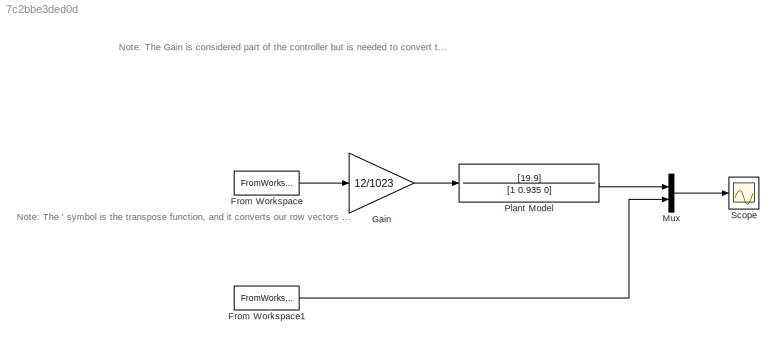
MODEL slx_7c2bbe3ded0d
KIND model
CONFIG AbsTol = auto
CONFIG EnableMultiTasking = on
CONFIG FixedStep = 0.01
CONFIG MaxStep = auto
CONFIG MinStep = auto
CONFIG RelTol = 1e-3
CONFIG SampleTimeConstraint = Unconstrained
CONFIG Solver = ode45
CONFIG SolverName = ode45
CONFIG StartTime = 0.0
CONFIG StopTime = 5
BLOCK [FromWorkspace] From Workspace
  SampleTime = .01
  VariableName = [T' R']
BLOCK [FromWorkspace] From Workspace1
  SampleTime = -1
  VariableName = [T' Y']
BLOCK [Gain] Gain
  Gain = 12/1023
BLOCK [Mux] Mux
  DisplayOption = bar
  Inputs = 2
  Ports = [2, 1]
BLOCK [TransferFcn] Plant Model
  Denominator = [1 0.935 0]
  Numerator = [19.9]
BLOCK [Scope] Scope
  Floating = off
  NumInputPorts = 1
  Ports = [1]
  ScopeSpecificationString = Simulink.scopes.TimeScopeBlockCfg('CurrentConfiguration', extmgr.ConfigurationSet(extmgr.Configuration('Core','General UI',true),extmgr.Configuration('Core','Source UI',true),extmgr.Configuration('Sources','WiredSimulink',true,'DataLoggingSaveFormat','Array','DataLoggingDecimation','1','DataLoggingDecimateData',true),extmgr.Configuration('Visuals','Time Domain',true,'SerializedDisplays',{struct('M...<+2321ch>
ANNOTATION (root): Note: The ' symbol is the transpose function, and it converts our row vectors into column vectors. Do not remove.
ANNOTATION (root): Note: The Gain is considered part of the controller but is needed to convert the PWM output to Volts for Open-Loop testing. The 12 represents the voltage set on the power supply. 1023 represents the max reference input value.
LINE From Workspace1:1 -> Mux:2
LINE From Workspace:1 -> Gain:1
LINE Gain:1 -> Plant Model:1
LINE Mux:1 -> Scope:1
LINE Plant Model:1 -> Mux:1
